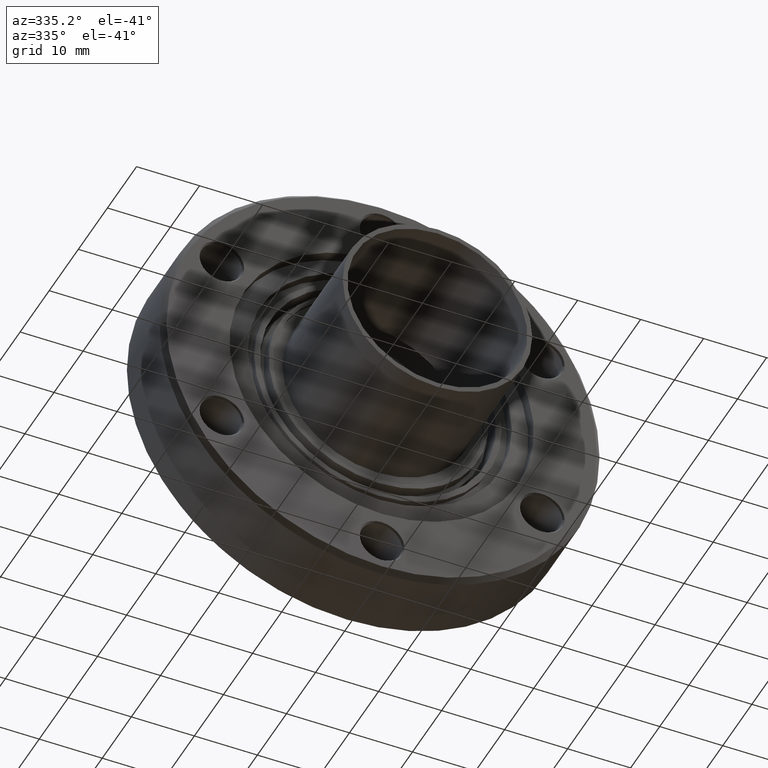
[diagram: clean part render]
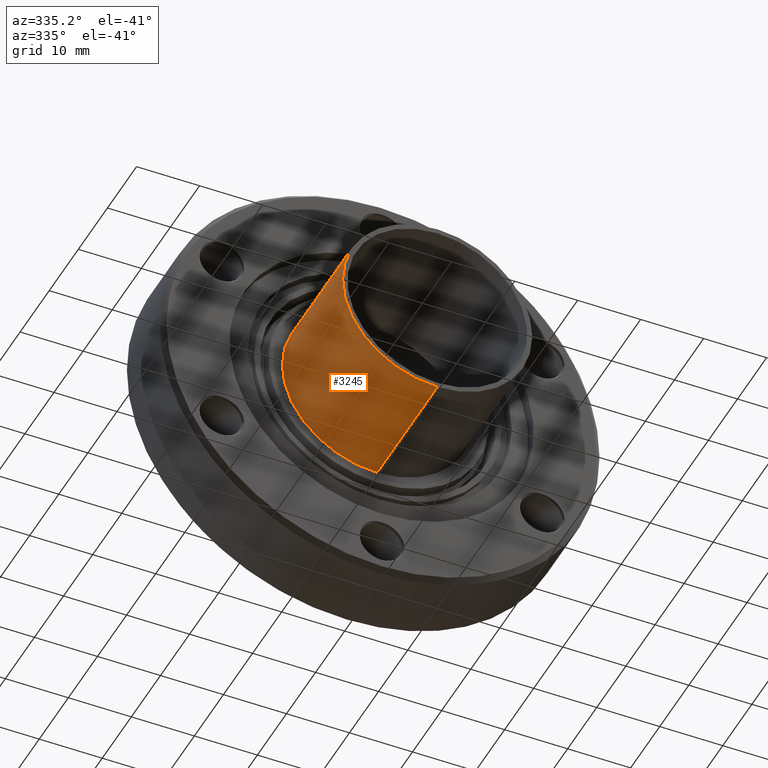
[diagram: same view with one face highlighted and labeled with its STEP entity id]
A machine part, auxiliary view. The second image highlights one B-rep face of the part: STEP entity #3245.
In plain terms, the highlighted cylindrical surface (partial cylindrical patch) has radius 15.0495 mm, axis along (0, 1, 0).
Its self-contained STEP definition (entity closure, byte-faithful):
#170 = AXIS2_PLACEMENT_3D ( 'NONE', #3678, #3677, #3674 ) ;
#759 = CIRCLE ( 'NONE', #1237, 0.5925000000000006900 ) ;
#822 = EDGE_LOOP ( 'NONE', ( #2910, #2967, #2911, #2902 ) ) ;
#884 = CIRCLE ( 'NONE', #1193, 0.5925000000000006900 ) ;
#927 = EDGE_CURVE ( 'NONE', #1694, #1646, #759, .T. ) ;
#928 = EDGE_CURVE ( 'NONE', #1652, #1625, #884, .T. ) ;
#940 = EDGE_CURVE ( 'NONE', #1652, #1694, #2206, .T. ) ;
#946 = EDGE_CURVE ( 'NONE', #1625, #1646, #2211, .T. ) ;
#1193 = AXIS2_PLACEMENT_3D ( 'NONE', #3360, #3359, #3363 ) ;
#1237 = AXIS2_PLACEMENT_3D ( 'NONE', #3354, #3357, #3356 ) ;
#1625 = VERTEX_POINT ( 'NONE', #1969 ) ;
#1646 = VERTEX_POINT ( 'NONE', #1989 ) ;
#1652 = VERTEX_POINT ( 'NONE', #1993 ) ;
#1694 = VERTEX_POINT ( 'NONE', #2023 ) ;
#1969 = CARTESIAN_POINT ( 'NONE',  ( 5.565779842514630600E-017, -1.254000000000003100, 0.5925000000000006900 ) ) ;
#1989 = CARTESIAN_POINT ( 'NONE',  ( 5.575083876983069700E-017, -0.4390000000000034400, 0.5925000000000006900 ) ) ;
#1993 = CARTESIAN_POINT ( 'NONE',  ( 1.282646414469692600E-016, -1.254000000000003100, -0.5925000000000006900 ) ) ;
#2023 = CARTESIAN_POINT ( 'NONE',  ( 1.282646414469692600E-016, -0.4390000000000034400, -0.5925000000000006900 ) ) ;
#2099 = VECTOR ( 'NONE', #3483, 39.37007874015748100 ) ;
#2176 = VECTOR ( 'NONE', #3506, 39.37007874015748100 ) ;
#2206 = LINE ( 'NONE', #3517, #2176 ) ;
#2211 = LINE ( 'NONE', #3477, #2099 ) ;
#2630 = FACE_OUTER_BOUND ( 'NONE', #822, .T. ) ;
#2636 = CYLINDRICAL_SURFACE ( 'NONE', #170, 0.5925000000000006900 ) ;
#2902 = ORIENTED_EDGE ( 'NONE', *, *, #927, .F. ) ;
#2910 = ORIENTED_EDGE ( 'NONE', *, *, #940, .F. ) ;
#2911 = ORIENTED_EDGE ( 'NONE', *, *, #946, .T. ) ;
#2967 = ORIENTED_EDGE ( 'NONE', *, *, #928, .T. ) ;
#3245 = ADVANCED_FACE ( 'NONE', ( #2630 ), #2636, .T. ) ;
#3354 = CARTESIAN_POINT ( 'NONE',  ( 5.575083876983069700E-017, -0.4390000000000034400, -2.650503505171095000E-017 ) ) ;
#3356 = DIRECTION ( 'NONE',  ( 0.0000000000000000000, 0.0000000000000000000, 1.000000000000000000 ) ) ;
#3357 = DIRECTION ( 'NONE',  ( 1.141599321280891100E-019, 1.000000000000000000, 3.469013207046116800E-018 ) ) ;
#3359 = DIRECTION ( 'NONE',  ( 1.141599321280891100E-019, 1.000000000000000000, 3.469013207046116800E-018 ) ) ;
#3360 = CARTESIAN_POINT ( 'NONE',  ( 5.565779842514630600E-017, -1.254000000000003100, -2.933228081545353200E-017 ) ) ;
#3363 = DIRECTION ( 'NONE',  ( 0.0000000000000000000, 0.0000000000000000000, 1.000000000000000000 ) ) ;
#3477 = CARTESIAN_POINT ( 'NONE',  ( 5.575768836575837900E-017, -0.3790000000000033900, 0.5925000000000006900 ) ) ;
#3483 = DIRECTION ( 'NONE',  ( 1.141599321280891100E-019, 1.000000000000000000, 3.469013207046117200E-018 ) ) ;
#3506 = DIRECTION ( 'NONE',  ( 1.141599321280891100E-019, 1.000000000000000000, 3.469013207046117200E-018 ) ) ;
#3517 = CARTESIAN_POINT ( 'NONE',  ( 1.283180112152391600E-016, -0.3790000000000033900, -0.5925000000000006900 ) ) ;
#3674 = DIRECTION ( 'NONE',  ( 0.0000000000000000000, 0.0000000000000000000, 1.000000000000000000 ) ) ;
#3677 = DIRECTION ( 'NONE',  ( 1.141599321280891100E-019, 1.000000000000000000, 3.469013207046116800E-018 ) ) ;
#3678 = CARTESIAN_POINT ( 'NONE',  ( 5.575768836575837900E-017, -0.3790000000000033900, -2.629689425928818300E-017 ) ) ;